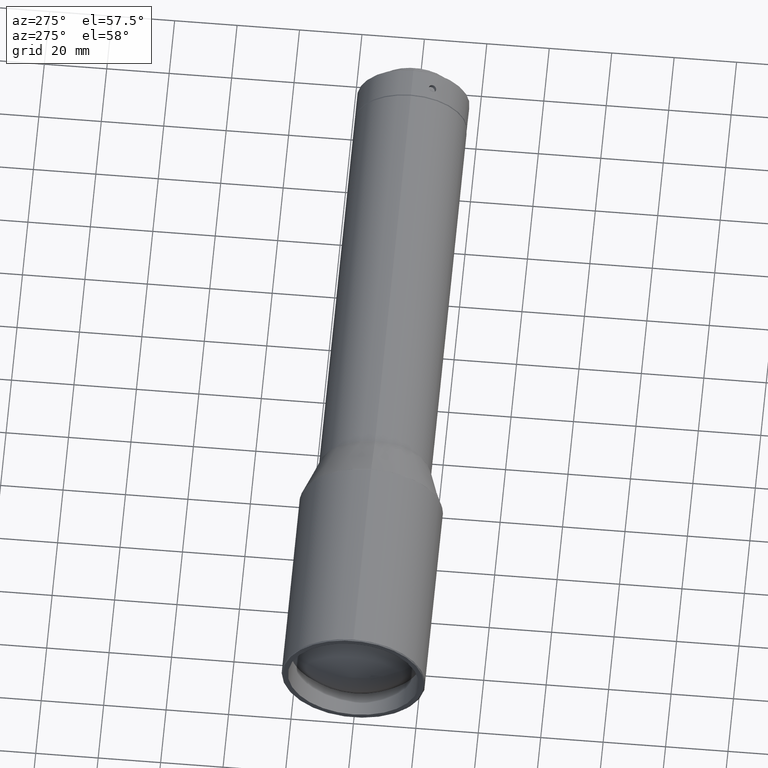
[diagram: clean part render]
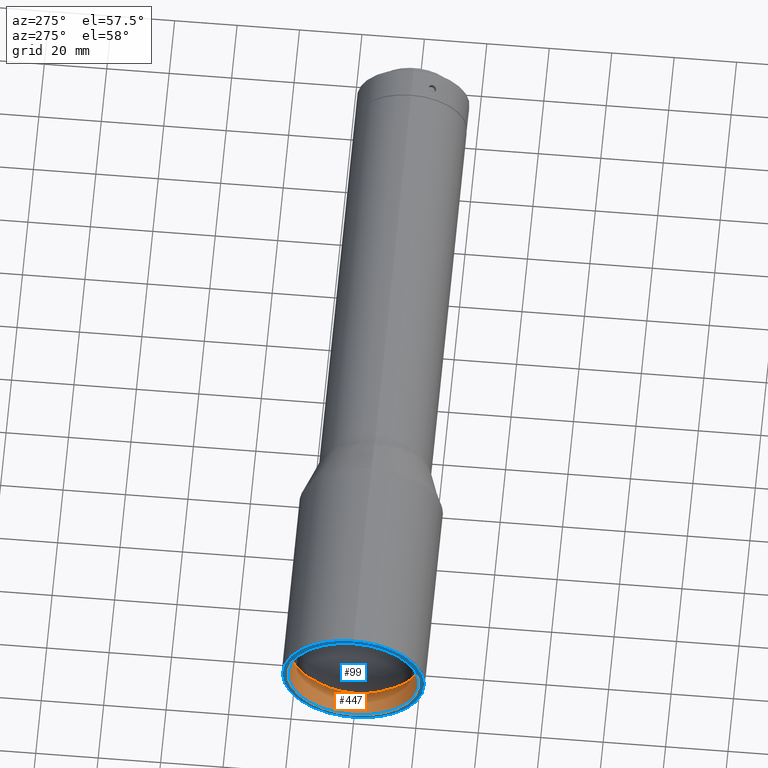
[diagram: same view with the hole feature highlighted: cylindrical wall and planar end face, labeled with their STEP entity ids]
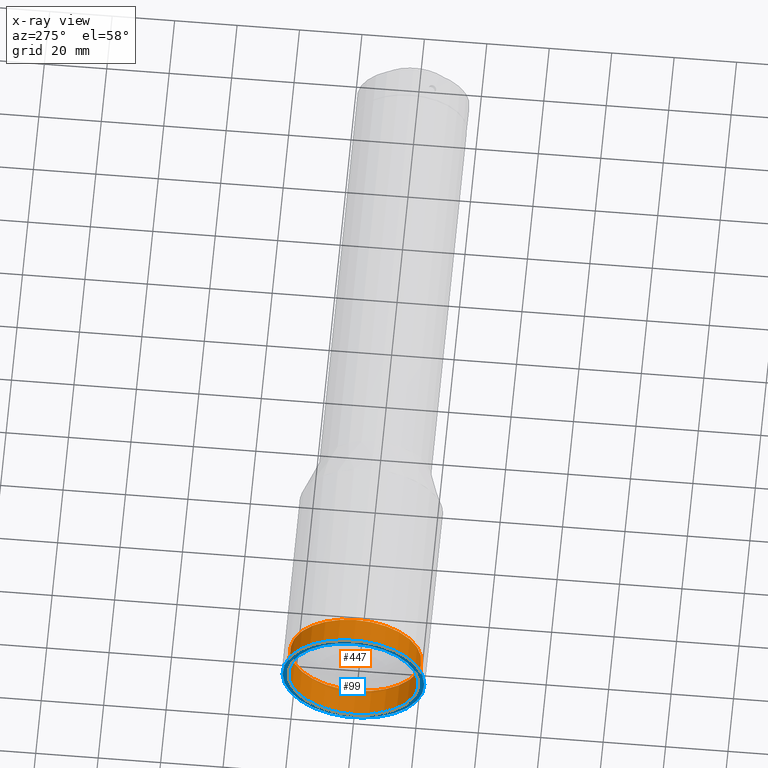
[diagram: x-ray of the same camera — body ghosted, the hole faces saturated]
A machine part, auxiliary view. The highlighted faces form one hole feature of diameter 42 mm: the cylindrical wall (entity #447, orange) and its adjacent planar end face (entity #99, blue) — they share a circular edge in the B-rep.
The next image is the same camera in x-ray (body ghosted, the hole faces saturated) — the bore reads through the body.
Wall:
#7 = CIRCLE ( 'NONE', #508, 21.00000000000000000 ) ;
#84 = EDGE_CURVE ( 'NONE', #705, #705, #7, .T. ) ;
#86 = DIRECTION ( 'NONE',  ( 0.000000000000000000, 0.000000000000000000, 1.000000000000000000 ) ) ;
#188 = VERTEX_POINT ( 'NONE', #316 ) ;
#207 = DIRECTION ( 'NONE',  ( -1.000000000000000000, 0.000000000000000000, 0.000000000000000000 ) ) ;
#264 = CARTESIAN_POINT ( 'NONE',  ( 480.0000000000000000, 0.000000000000000000, 0.000000000000000000 ) ) ;
#279 = EDGE_CURVE ( 'NONE', #188, #188, #510, .T. ) ;
#316 = CARTESIAN_POINT ( 'NONE',  ( 480.0000000000000000, 0.000000000000000000, 21.00000000000000000 ) ) ;
#391 = DIRECTION ( 'NONE',  ( -1.000000000000000000, -0.000000000000000000, -0.000000000000000000 ) ) ;
#426 = ORIENTED_EDGE ( 'NONE', *, *, #279, .T. ) ;
#436 = DIRECTION ( 'NONE',  ( 0.000000000000000000, 0.000000000000000000, 1.000000000000000000 ) ) ;
#445 = ORIENTED_EDGE ( 'NONE', *, *, #84, .F. ) ;
#447 = ADVANCED_FACE ( 'NONE', ( #449, #849 ), #784, .F. ) ;
#449 = FACE_OUTER_BOUND ( 'NONE', #786, .T. ) ;
#508 = AXIS2_PLACEMENT_3D ( 'NONE', #800, #207, #86 ) ;
#510 = CIRCLE ( 'NONE', #761, 21.00000000000000000 ) ;
#583 = CARTESIAN_POINT ( 'NONE',  ( 489.0000000000000000, 0.000000000000000000, 0.000000000000000000 ) ) ;
#590 = CARTESIAN_POINT ( 'NONE',  ( 489.0000000000000000, 0.000000000000000000, 21.00000000000000000 ) ) ;
#614 = EDGE_LOOP ( 'NONE', ( #426 ) ) ;
#661 = DIRECTION ( 'NONE',  ( 0.000000000000000000, 0.000000000000000000, 1.000000000000000000 ) ) ;
#705 = VERTEX_POINT ( 'NONE', #590 ) ;
#723 = AXIS2_PLACEMENT_3D ( 'NONE', #583, #391, #436 ) ;
#761 = AXIS2_PLACEMENT_3D ( 'NONE', #264, #783, #661 ) ;
#783 = DIRECTION ( 'NONE',  ( -1.000000000000000000, 0.000000000000000000, 0.000000000000000000 ) ) ;
#784 = CYLINDRICAL_SURFACE ( 'NONE', #723, 21.00000000000000000 ) ;
#786 = EDGE_LOOP ( 'NONE', ( #445 ) ) ;
#800 = CARTESIAN_POINT ( 'NONE',  ( 489.0000000000000000, 0.000000000000000000, 0.000000000000000000 ) ) ;
#849 = FACE_OUTER_BOUND ( 'NONE', #614, .T. ) ;
End face:
#55 = FACE_OUTER_BOUND ( 'NONE', #791, .T. ) ;
#99 = ADVANCED_FACE ( 'NONE', ( #693, #55 ), #697, .F. ) ;
#136 = EDGE_LOOP ( 'NONE', ( #640 ) ) ;
#171 = DIRECTION ( 'NONE',  ( 1.000000000000000000, 1.206764157201256946E-15, -0.000000000000000000 ) ) ;
#188 = VERTEX_POINT ( 'NONE', #316 ) ;
#223 = AXIS2_PLACEMENT_3D ( 'NONE', #630, #709, #839 ) ;
#264 = CARTESIAN_POINT ( 'NONE',  ( 480.0000000000000000, 0.000000000000000000, 0.000000000000000000 ) ) ;
#270 = CIRCLE ( 'NONE', #530, 22.69999999999998508 ) ;
#279 = EDGE_CURVE ( 'NONE', #188, #188, #510, .T. ) ;
#316 = CARTESIAN_POINT ( 'NONE',  ( 480.0000000000000000, 0.000000000000000000, 21.00000000000000000 ) ) ;
#399 = CARTESIAN_POINT ( 'NONE',  ( 480.0000000000000000, 22.69999999999998153, -3.469446951953614189E-15 ) ) ;
#420 = ORIENTED_EDGE ( 'NONE', *, *, #625, .F. ) ;
#510 = CIRCLE ( 'NONE', #761, 21.00000000000000000 ) ;
#530 = AXIS2_PLACEMENT_3D ( 'NONE', #765, #171, #817 ) ;
#625 = EDGE_CURVE ( 'NONE', #669, #669, #270, .T. ) ;
#630 = CARTESIAN_POINT ( 'NONE',  ( 480.0000000000000000, 21.75000000000000000, -3.479664509717021198E-15 ) ) ;
#640 = ORIENTED_EDGE ( 'NONE', *, *, #279, .F. ) ;
#661 = DIRECTION ( 'NONE',  ( 0.000000000000000000, 0.000000000000000000, 1.000000000000000000 ) ) ;
#669 = VERTEX_POINT ( 'NONE', #399 ) ;
#693 = FACE_BOUND ( 'NONE', #136, .T. ) ;
#697 = PLANE ( 'NONE',  #223 ) ;
#709 = DIRECTION ( 'NONE',  ( 1.000000000000000000, -0.000000000000000000, 0.000000000000000000 ) ) ;
#761 = AXIS2_PLACEMENT_3D ( 'NONE', #264, #783, #661 ) ;
#765 = CARTESIAN_POINT ( 'NONE',  ( 480.0000000000000000, -4.231825720201500278E-15, -3.469446951953614189E-15 ) ) ;
#783 = DIRECTION ( 'NONE',  ( -1.000000000000000000, 0.000000000000000000, 0.000000000000000000 ) ) ;
#791 = EDGE_LOOP ( 'NONE', ( #420 ) ) ;
#817 = DIRECTION ( 'NONE',  ( 0.000000000000000000, 1.000000000000000000, 0.000000000000000000 ) ) ;
#839 = DIRECTION ( 'NONE',  ( 0.000000000000000000, 0.000000000000000000, -1.000000000000000000 ) ) ;